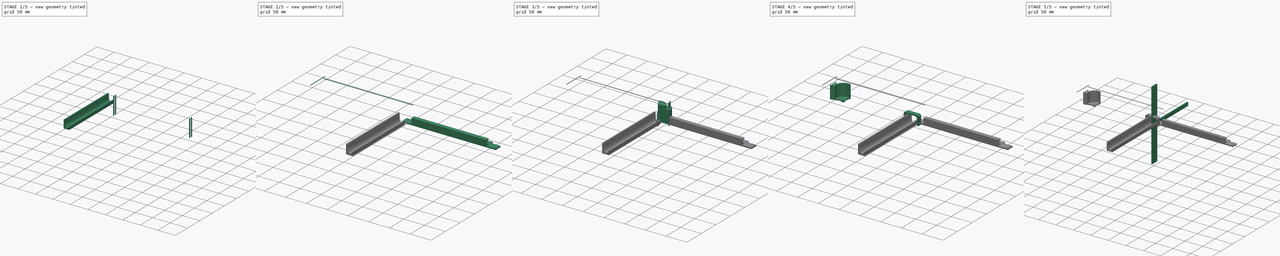
[diagram: build sequence overview — one tinted view per stage of 5, left to right]
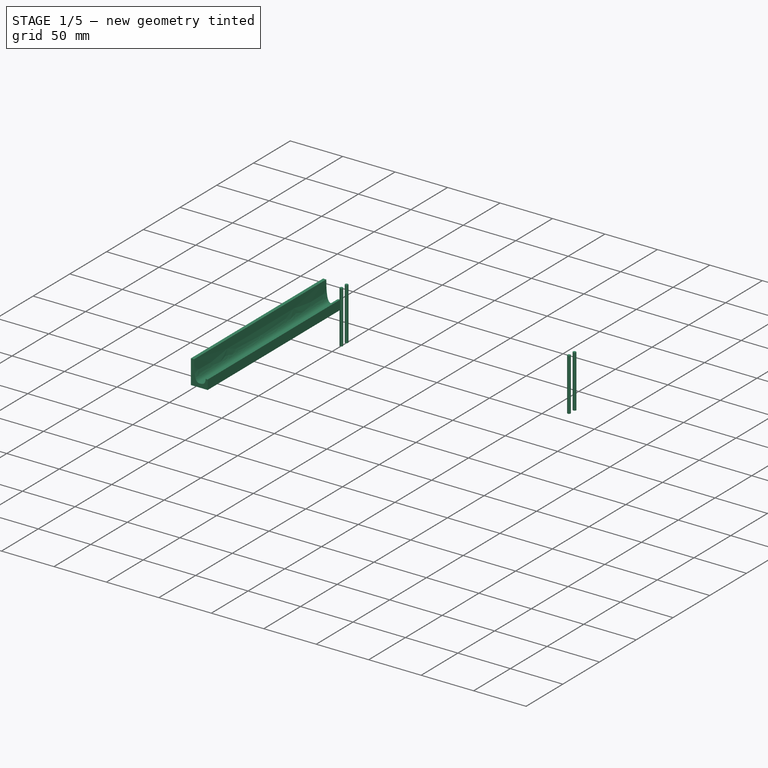
[diagram: stage 1 of 5 — iso view after this stage's code; geometry added in this stage tinted green]
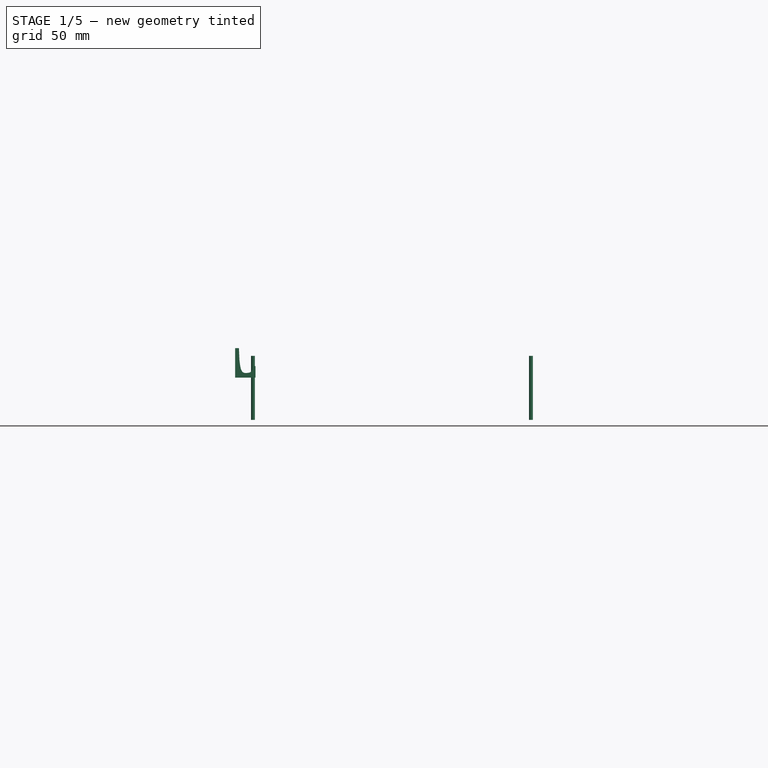
[diagram: stage 1 of 5 — front view after this stage's code; geometry added in this stage tinted green]
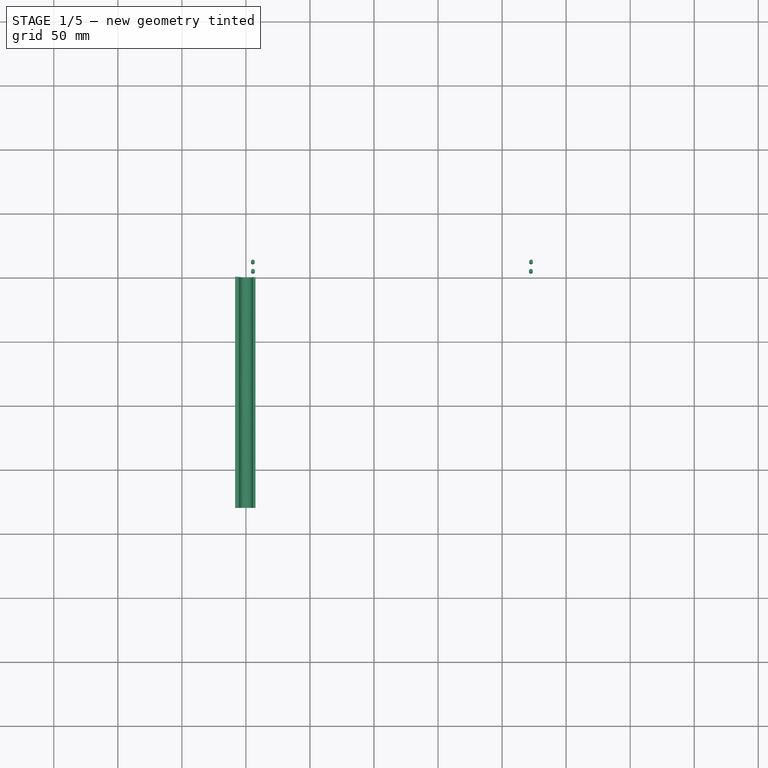
[diagram: stage 1 of 5 — top view after this stage's code; geometry added in this stage tinted green]
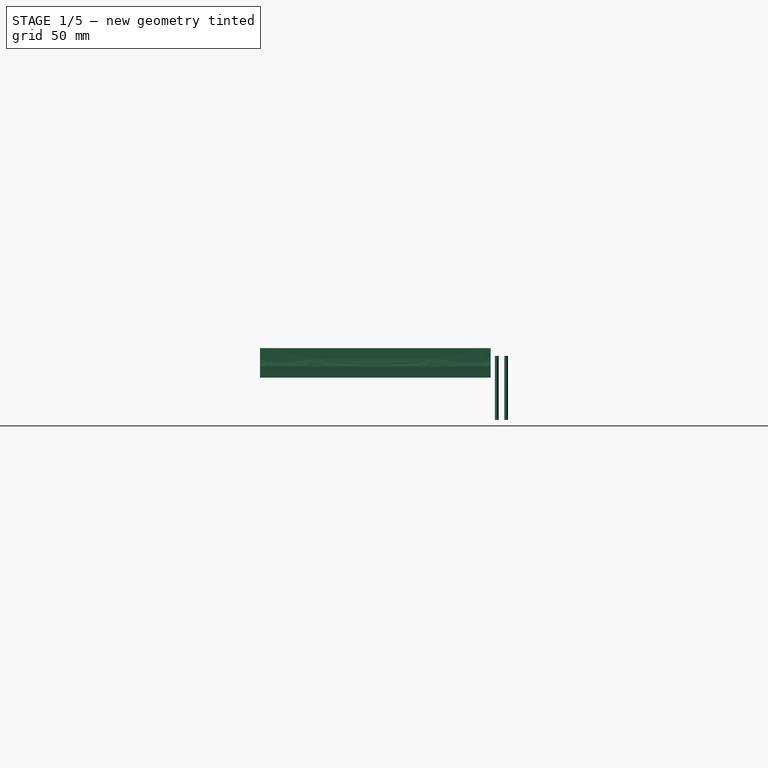
[diagram: stage 1 of 5 — right view after this stage's code; geometry added in this stage tinted green]
FCSTD DOCUMENT  (FreeCAD 0.18.4R)
Label: phone_holder
License: All rights reserved
LicenseURL: http://en.wikipedia.org/wiki/All_rights_reserved
objects: PartDesign::Body×11, App::Part×9, Part::Cylinder×8, Sketcher::SketchObject×6, PartDesign::Pad×6, PartDesign::FeatureBase×5, Part::MultiFuse×5, Part::Cut×4, Part::Box×3, Part::Mirroring×2, Part::Ellipse×1, Part::Extrusion×1, Part::Fillet×1
note: 59 computed .brp shape members not serialized (recipe doc carries the construction recipe); baked Part::Feature solids carry a one-line shape summary decoded from their .brp

FEATURE [Part::Cylinder] Cylinder006  label="Cylinder004"
  Angle = 360
  AttacherType = Attacher::AttachEngine3D
  Height = 50
  Placement = pos=(23,5,-5) rot=(0,0,1;0rad)
  Radius = 1.45
FEATURE [Part::Cylinder] Cylinder007  label="Cylinder005"
  Angle = 360
  AttacherType = Attacher::AttachEngine3D
  Height = 50
  Placement = pos=(21,12,-5) rot=(0,0,1;0rad)
  Radius = 1.45
FEATURE [Part::MultiFuse] Fusion
  Shapes = -> [Cylinder007,Cylinder006]
FEATURE [App::Part] Part005  label="bottom round part"
  Group = -> [Cylinder002,Cylinder003,Cylinder004,Cut002,Ellipse,Extrude,Fillet,Cylinder005,Fusion001,Fusion002,Part__Mirroring]
  Origin = -> Origin011
FEATURE [PartDesign::FeatureBase] Clone003
  BaseFeature = -> Fusion
FEATURE [PartDesign::Body] Body007  label="round holes clone"
  BaseFeature = -> Fusion
  Group = -> [Clone003]
  Origin = -> Origin015
  Placement = pos=(0,5.95964,-31) rot=(0,0,-1;0.261799rad)
  Tip = -> Clone003
FEATURE [Part::Mirroring] Part__Mirroring001  label="round holes clone (Mirror #2)"
  Base = (132,0,0)
  Normal = (1,0,0)
  Source = -> Body007
FEATURE [Part::MultiFuse] Fusion003
  Placement = pos=(-18,0,0) rot=(0,0,1;0rad)
  Shapes = -> [Part__Mirroring001,Body007]
FEATURE [PartDesign::Body] Body009
  Group = -> [Clone004]
  Origin = -> Origin017
  Tip = -> Clone004
FEATURE [Sketcher::SketchObject] Sketch005
  MapMode = 5
  Placement = pos=(0,0,0) rot=(1,0,0;1.5708rad)
  Support = -> [XZ_Plane017]
  sketch-geometry (11):
    g0: LineSegment StartX=-8.5 StartY=-3 StartZ=0 EndX=-8.5 EndY=20 EndZ=0
    g1: LineSegment StartX=-8.5 StartY=20 StartZ=0 EndX=-5.5 EndY=20 EndZ=0
    g2-g6: Circle [constr] x5 (B-spline internal-alignment scaffolding for g7; pole/knot coordinates omitted)
    g7: BSplineCurve PolesCount=5 KnotsCount=3 Degree=3 IsPeriodic=0
    g8: LineSegment StartX=7.5 StartY=-3 StartZ=0 EndX=7.5 EndY=6 EndZ=0
    g9: LineSegment StartX=5.5 StartY=6 StartZ=0 EndX=7.5 EndY=6 EndZ=0
    g10: LineSegment StartX=-8.5 StartY=-3 StartZ=0 EndX=7.5 EndY=-3 EndZ=0
  constraints (25):
    c: Vertical(g0)
    c: Coincident(g1,g0)
    c: Coincident(g7,g1)
    c: Radius(g2) = 1
    c: Equal(g2, g3-g6) x4
    c: InternalAlignment(g2-g6 -> g7) x5
    c: Coincident(g9,g7)
    c: Coincident(g9,g8)
    c: Horizontal(g9)
    c: Horizontal(g1)
    c: Coincident(g4,g-1)
    c: Symmetric(g5,g3,g-2)
    c: DistanceX(g1,g7) = 11
    c: DistanceX(g1,g1) = 3
    c: DistanceX(g9,g9) = 2
    c: Vertical(g8)
    c: DistanceX(g-1,g5) = 5.5
    c: DistanceY(g-1,g5) = 1.17
    c: DistanceY(g8,g-1) = 3
    c: DistanceY(g-1,g7) = 6
    c: Coincident(g10,g8)
    c: Horizontal(g10)
    c: DistanceY(g-1,g0) = 20
    c: DistanceX(g-1,g8) = 7.5
    c: Coincident(g10,g0)
FEATURE [PartDesign::Pad] Pad005
  Length = 180
  Length2 = 100
  Placement = pos=(0,0,0) rot=(1,0,0;1.5708rad)
  Profile = -> Sketch005
  Type = 0
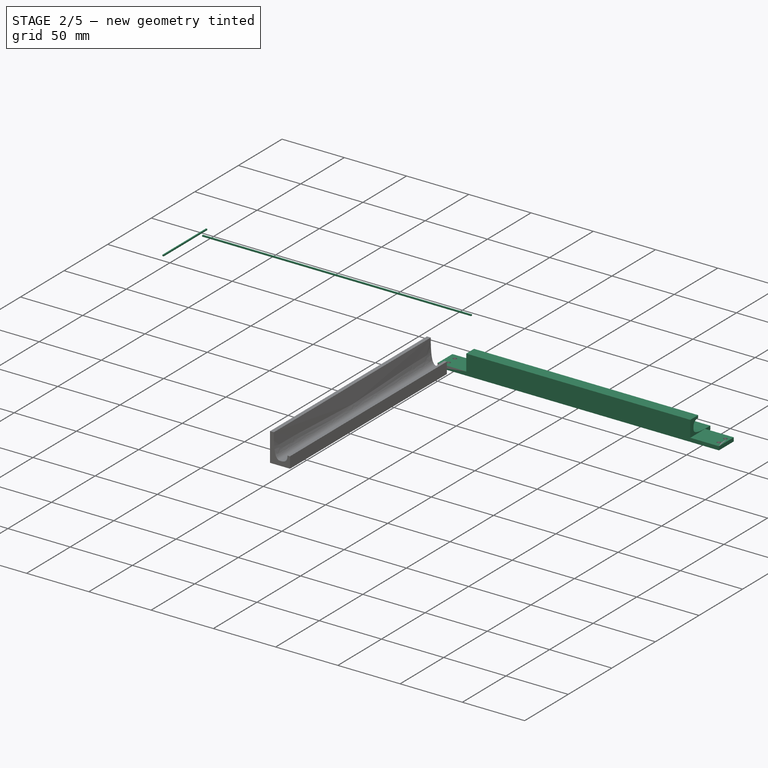
[diagram: stage 2 of 5 — iso view after this stage's code; geometry added in this stage tinted green]
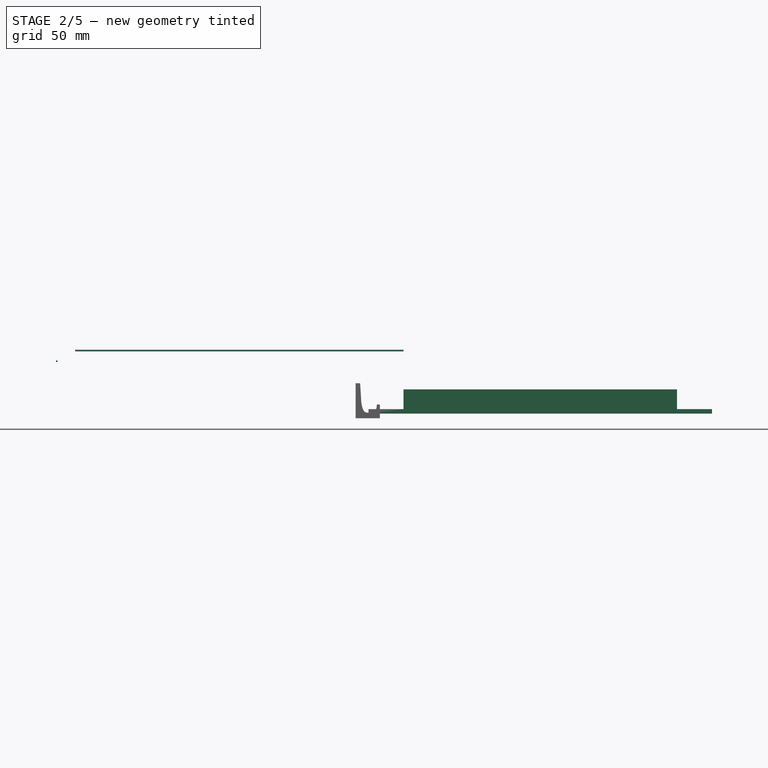
[diagram: stage 2 of 5 — front view after this stage's code; geometry added in this stage tinted green]
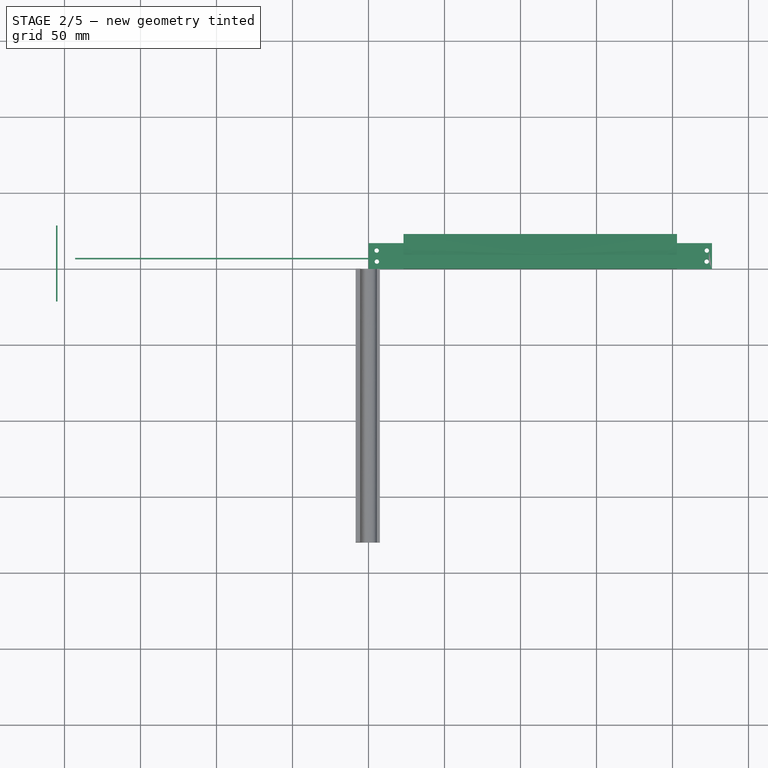
[diagram: stage 2 of 5 — top view after this stage's code; geometry added in this stage tinted green]
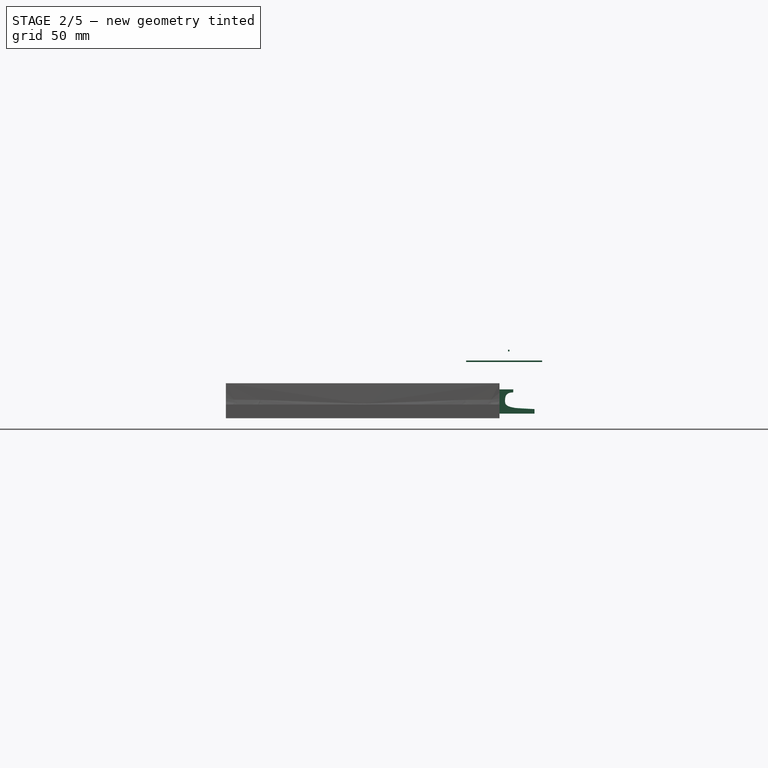
[diagram: stage 2 of 5 — right view after this stage's code; geometry added in this stage tinted green]
FEATURE [Part::Box] Box  label="Cube"
  AttacherType = Attacher::AttachEngine3D
  Height = 3
  Length = 226
  Width = 17
FEATURE [Part::Cut] Cut003
  Base = -> Box
  Tool = -> Fusion003
FEATURE [Part::Box] Box001  label="21.6 dist"
  AttacherType = Attacher::AttachEngine3D
  Height = 1
  Length = 216
  Placement = pos=(-193,5.6,41) rot=(0,0,1;0rad)
  Width = 1
FEATURE [Part::Box] Box002  label="vert line"
  AttacherType = Attacher::AttachEngine3D
  Height = 1
  Length = 1
  Placement = pos=(-205.6,-22,34) rot=(0,0,1;0rad)
  Width = 50
FEATURE [Sketcher::SketchObject] Sketch004
  MapMode = 5
  Placement = pos=(0,0,0) rot=(1,0,0;1.5708rad)
  Support = -> [XZ_Plane001]
  sketch-geometry (11):
    g0: LineSegment StartX=-8.5 StartY=-3 StartZ=0 EndX=-8.5 EndY=20 EndZ=0
    g1: LineSegment StartX=-8.5 StartY=20 StartZ=0 EndX=-5.5 EndY=20 EndZ=0
    g2-g6: Circle [constr] x5 (B-spline internal-alignment scaffolding for g7; pole/knot coordinates omitted)
    g7: BSplineCurve PolesCount=5 KnotsCount=3 Degree=3 IsPeriodic=0
    g8: LineSegment StartX=7.5 StartY=-3 StartZ=0 EndX=7.5 EndY=6 EndZ=0
    g9: LineSegment StartX=5.5 StartY=6 StartZ=0 EndX=7.5 EndY=6 EndZ=0
    g10: LineSegment StartX=-8.5 StartY=-3 StartZ=0 EndX=7.5 EndY=-3 EndZ=0
  constraints (25):
    c: Vertical(g0)
    c: Coincident(g1,g0)
    c: Coincident(g7,g1)
    c: Radius(g2) = 1
    c: Equal(g2, g3-g6) x4
    c: InternalAlignment(g2-g6 -> g7) x5
    c: Coincident(g9,g7)
    c: Coincident(g9,g8)
    c: Horizontal(g9)
    c: Horizontal(g1)
    c: Coincident(g4,g-1)
    c: Symmetric(g5,g3,g-2)
    c: DistanceX(g1,g7) = 11
    c: DistanceX(g1,g1) = 3
    c: DistanceX(g9,g9) = 2
    c: Vertical(g8)
    c: DistanceX(g-1,g5) = 5.5
    c: DistanceY(g-1,g5) = 1.17
    c: DistanceY(g8,g-1) = 3
    c: DistanceY(g-1,g7) = 6
    c: Coincident(g10,g8)
    c: Horizontal(g10)
    c: DistanceY(g-1,g0) = 20
    c: DistanceX(g-1,g8) = 7.5
    c: Coincident(g10,g0)
FEATURE [PartDesign::Pad] Pad004
  Length = 180
  Length2 = 100
  Placement = pos=(0,0,0) rot=(1,0,0;1.5708rad)
  Profile = -> Sketch004
  Type = 0
FEATURE [PartDesign::Body] Body008  label="holder body"
  Group = -> [Sketch004,Pad004]
  Origin = -> Origin016
  Placement = pos=(203,3,8.5) rot=(0.57735,0.57735,0.57735;4.18879rad)
  Tip = -> Pad004
FEATURE [App::Part] Part006  label="bottom connector line part"
  Group = -> [Box,Body007,Part__Mirroring001,Cut003,Fusion003,Body008]
  Origin = -> Origin012
  Placement = pos=(-198.7,-6,34.3) rot=(0,0,1;0rad)
FEATURE [PartDesign::FeatureBase] Clone004
  BaseFeature = -> Cut003
FEATURE [PartDesign::Body] Body011  label="holder body001"
  Group = -> [Sketch005,Pad005]
  Origin = -> Origin020
  Placement = pos=(203,3,8.5) rot=(0.57735,0.57735,0.57735;4.18879rad)
  Tip = -> Pad005
FEATURE [Part::MultiFuse] Fusion004
  Shapes = -> [Body011,Body009]
FEATURE [App::Part] Part008  label="bottom connector line print part"
  Group = -> [Body011,Body009,Fusion004]
  Origin = -> Origin018
  Placement = pos=(-198.7,-6,34.3) rot=(0,0,1;0rad)
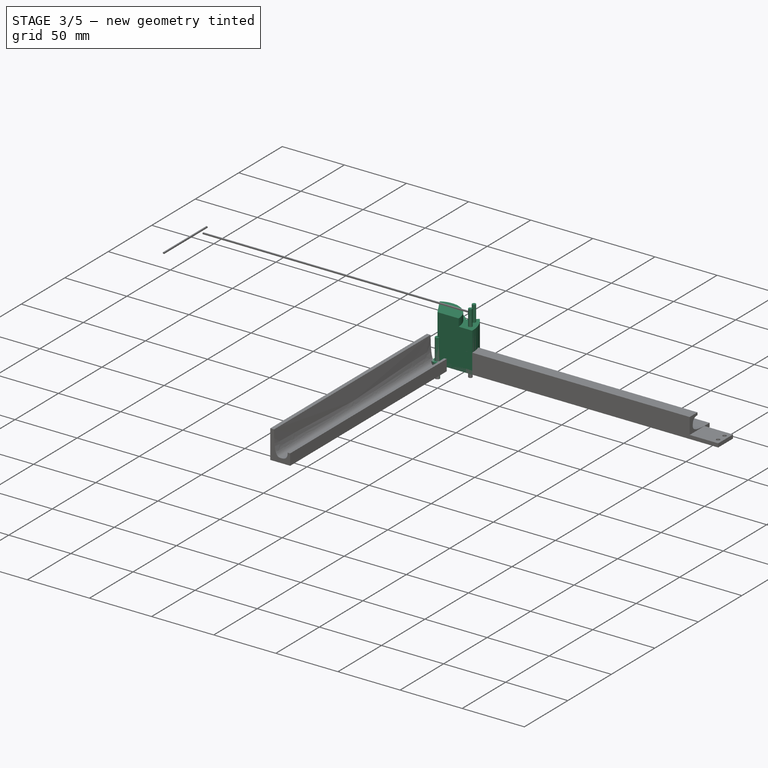
[diagram: stage 3 of 5 — iso view after this stage's code; geometry added in this stage tinted green]
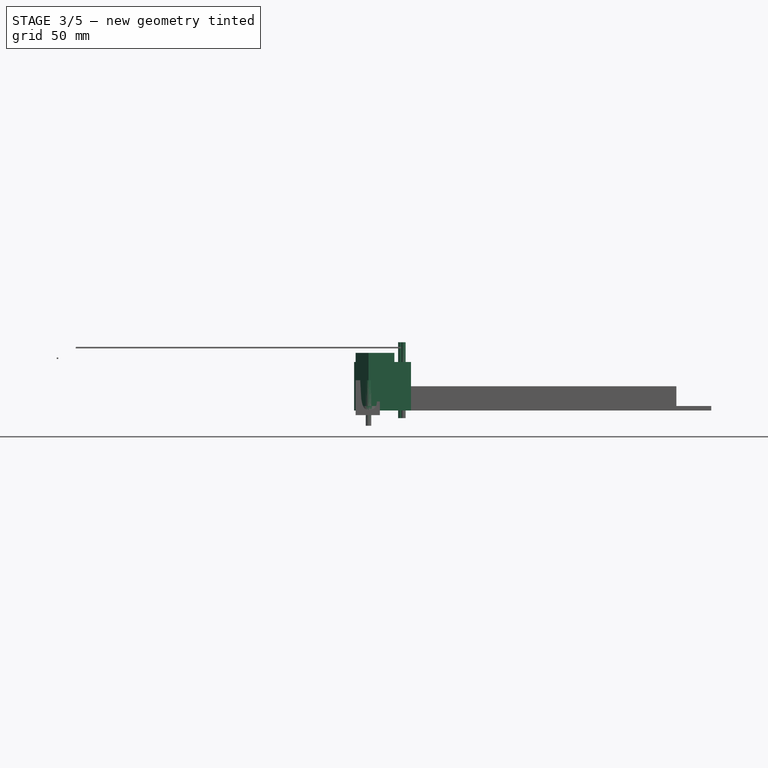
[diagram: stage 3 of 5 — front view after this stage's code; geometry added in this stage tinted green]
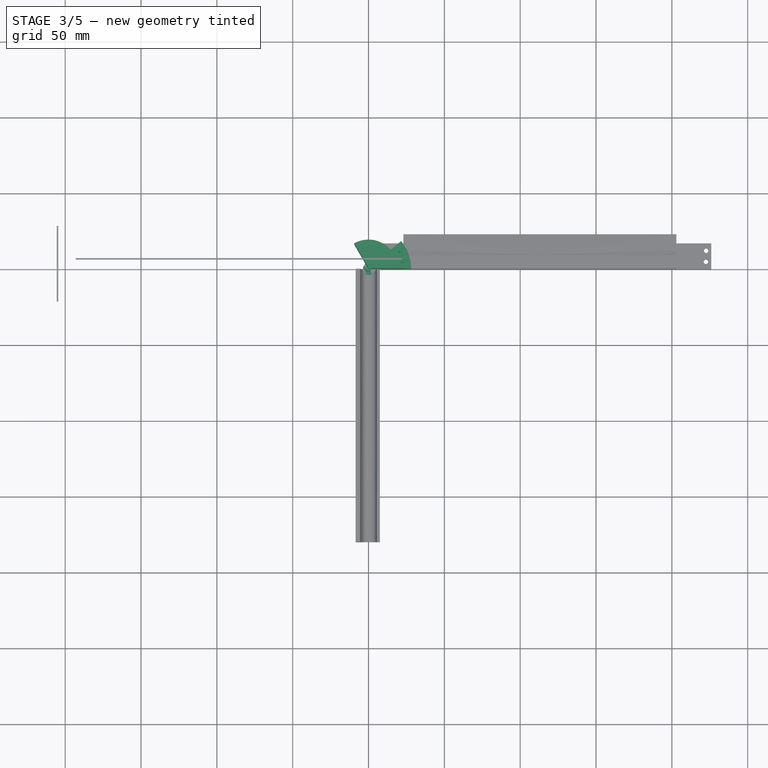
[diagram: stage 3 of 5 — top view after this stage's code; geometry added in this stage tinted green]
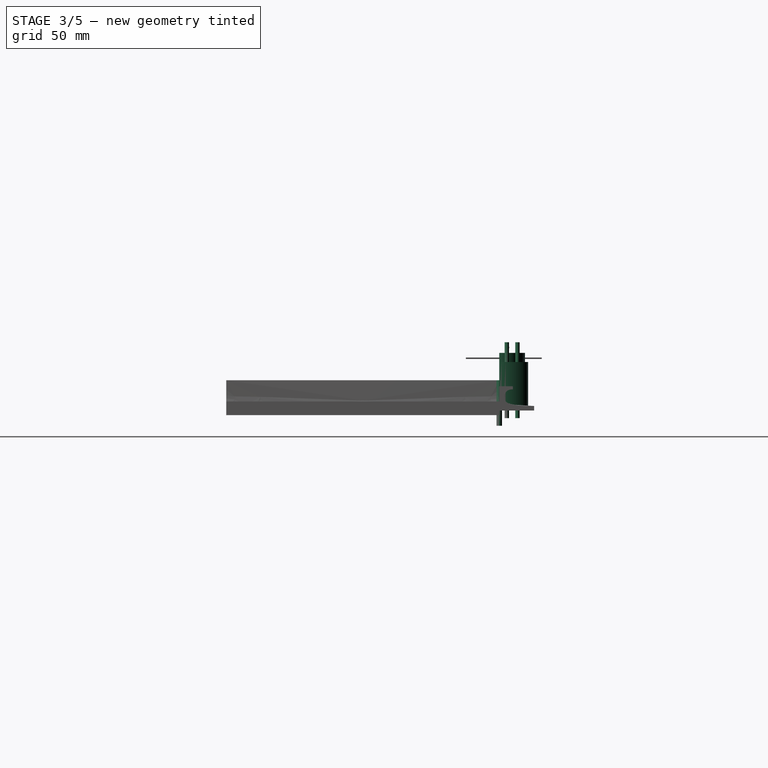
[diagram: stage 3 of 5 — right view after this stage's code; geometry added in this stage tinted green]
FEATURE [App::Part] Part001  label="top part"
  Group = -> [Body001,Cylinder001,Cut001]
  Origin = -> Origin002
  Placement = pos=(-15,71,80) rot=(0,0,1;0rad)
FEATURE [Part::Cylinder] Cylinder002  label="Cylinder"
  Angle = 360
  AttacherType = Attacher::AttachEngine3D
  Height = 30
  Placement = pos=(0,0,-10) rot=(0,0,1;0rad)
  Radius = 1.8
FEATURE [Part::Cylinder] Cylinder003  label="Cylinder001"
  Angle = 120
  AttacherType = Attacher::AttachEngine3D
  Height = 32
  Radius = 19
FEATURE [Part::Cylinder] Cylinder004  label="Cylinder002"
  Angle = 120
  AttacherType = Attacher::AttachEngine3D
  Height = 35
  Placement = pos=(0,0,3) rot=(0,0,1;0rad)
  Radius = 17
FEATURE [Part::Ellipse] Ellipse
  Angle0 = 0
  Angle1 = 360
  AttacherType = Attacher::AttachEngine3D
  MajorRadius = 5
  MinorRadius = 4
FEATURE [Part::Extrusion] Extrude
  Base = -> Ellipse
  Dir = (0,0,1)
  DirMode = 2
  FaceMakerClass = Part::FaceMakerBullseye
  LengthFwd = 3
  LengthRev = 0
  Placement = pos=(0.707107,0.707107,0) rot=(0,0,1;0.785398rad)
  Solid = true
  Symmetric = false
FEATURE [Part::Cylinder] Cylinder005  label="Cylinder003"
  Angle = 40
  AttacherType = Attacher::AttachEngine3D
  Height = 32
  Radius = 28
FEATURE [App::Part] Part007  label="bottom round holes"
  Group = -> [Cylinder006,Cylinder007,Fusion]
  Origin = -> Origin013
FEATURE [PartDesign::FeatureBase] Clone002
  BaseFeature = -> Fusion
FEATURE [PartDesign::Body] Body006
  BaseFeature = -> Fusion
  Group = -> [Clone002]
  Origin = -> Origin014
  Tip = -> Clone002
FEATURE [Part::MultiFuse] Fusion002
  Shapes = -> [Cylinder002,Cylinder004,Body006]
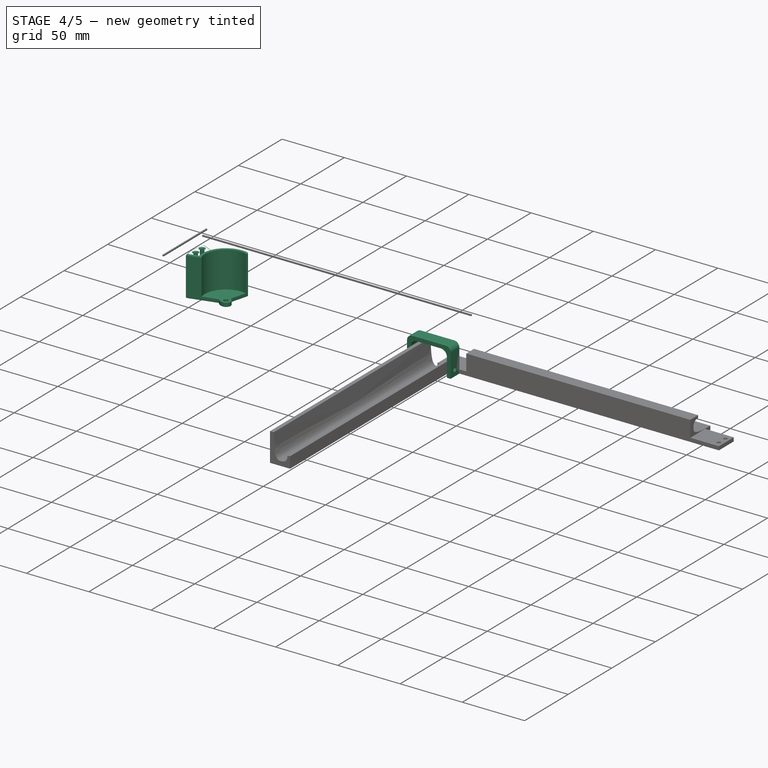
[diagram: stage 4 of 5 — iso view after this stage's code; geometry added in this stage tinted green]
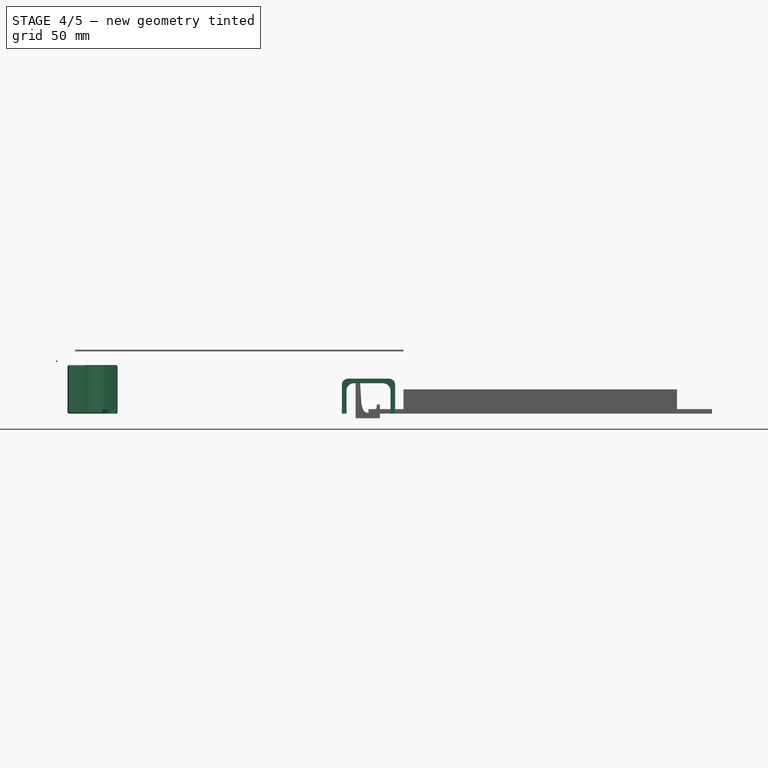
[diagram: stage 4 of 5 — front view after this stage's code; geometry added in this stage tinted green]
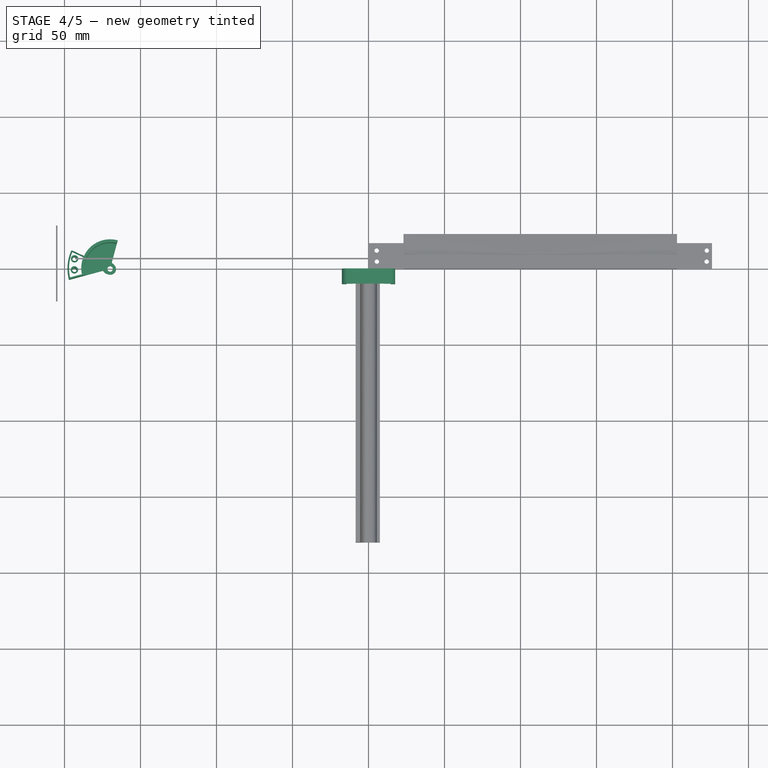
[diagram: stage 4 of 5 — top view after this stage's code; geometry added in this stage tinted green]
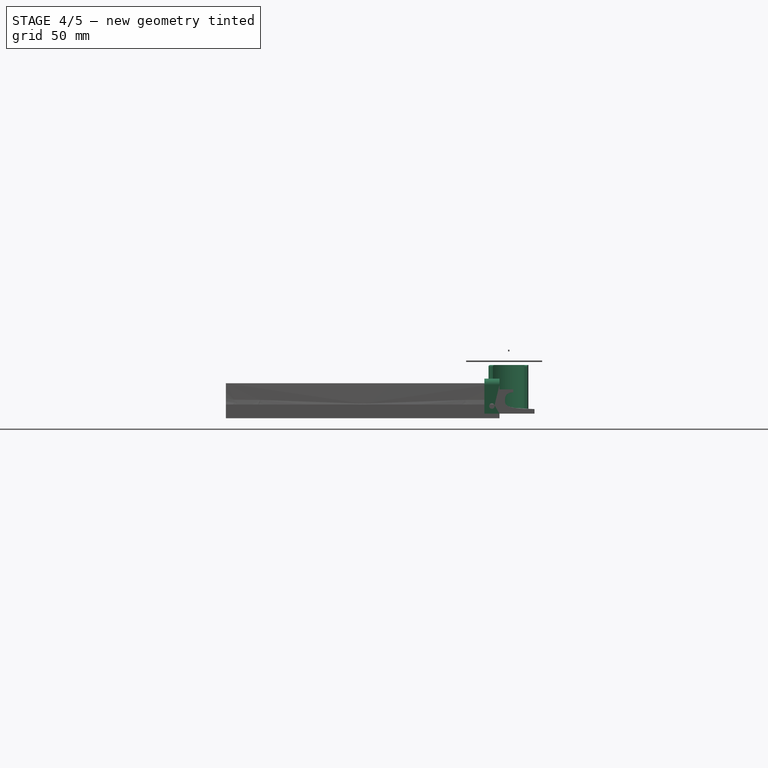
[diagram: stage 4 of 5 — right view after this stage's code; geometry added in this stage tinted green]
FEATURE [PartDesign::Body] Body
  Group = -> [Sketch,Pad]
  Origin = -> Origin001
  Tip = -> Pad
FEATURE [Sketcher::SketchObject] Sketch001
  MapMode = 5
  Placement = pos=(0,0,0) rot=(1,0,0;1.5708rad)
  Support = -> [XZ_Plane003]
  sketch-geometry (12):
    g0: LineSegment StartX=-14.5 StartY=0 StartZ=0 EndX=-14.5 EndY=15 EndZ=0
    g1: LineSegment StartX=-9.5 StartY=20 StartZ=0 EndX=9.5 EndY=20 EndZ=0
    g2: LineSegment StartX=-14.5 StartY=0 StartZ=0 EndX=-17.5 EndY=0 EndZ=0
    g3: LineSegment StartX=-17.5 StartY=0 StartZ=0 EndX=-17.5 EndY=19 EndZ=0
    g4: LineSegment StartX=-13.5 StartY=23 StartZ=0 EndX=13.5 EndY=23 EndZ=0
    g5: LineSegment StartX=17.5 StartY=19 StartZ=0 EndX=17.5 EndY=0 EndZ=0
    g6: LineSegment StartX=17.5 StartY=0 StartZ=0 EndX=14.5 EndY=0 EndZ=0
    g7: ArcOfCircle CenterX=-13.5 CenterY=19 CenterZ=0 NormalX=0 NormalY=0 NormalZ=1 AngleXU=0 Radius=4 StartAngle=1.5708 EndAngle=3.14159
    g8: ArcOfCircle CenterX=13.5 CenterY=19 CenterZ=0 NormalX=0 NormalY=0 NormalZ=1 AngleXU=0 Radius=4 StartAngle=0 EndAngle=1.5708
    g9: ArcOfCircle CenterX=9.5 CenterY=15 CenterZ=0 NormalX=0 NormalY=0 NormalZ=1 AngleXU=0 Radius=5 StartAngle=0 EndAngle=1.5708
    g10: ArcOfCircle CenterX=-9.5 CenterY=15 CenterZ=0 NormalX=0 NormalY=0 NormalZ=1 AngleXU=0 Radius=5 StartAngle=1.5708 EndAngle=3.14159
    g11: LineSegment StartX=14.5 StartY=15 StartZ=0 EndX=14.5 EndY=0 EndZ=0
  constraints (31):
    c: Vertical(g0)
    c: Horizontal(g1)
    c: Coincident(g0,g2)
    c: Horizontal(g2)
    c: Coincident(g2,g3)
    c: Vertical(g3)
    c: Vertical(g5)
    c: Coincident(g5,g6)
    c: DistanceX(g2,g2) = 3
    c: Horizontal(g6)
    c: DistanceX(g6,g6) = 3
    c: Tangent(g3,g7) = 1.5708
    c: Tangent(g4,g7) = 1.5708
    c: Tangent(g4,g8) = 1.5708
    c: Tangent(g5,g8) = 1.5708
    c: Tangent(g1,g9) = 1.5708
    c: Tangent(g1,g10) = 1.5708
    c: Tangent(g0,g10) = 1.5708
    c: Symmetric(g5,g3,g-2)
    c: DistanceY(g1,g4) = 3
    c: DistanceY(g0,g1) = 20
    c: Vertical(g11)
    c: DistanceY(g6,g1) = 20
    c: Equal(g9,g10)
    c: DistanceX(g0,g6) = 29
    c: Equal(g7,g8)
    c: DistanceY(g-1,g0) = 0
    c: Tangent(g11,g9) = 1.5708
    c: Coincident(g11,g6)
    c: Radius(g7) = 4
    c: Radius(g10) = 5
FEATURE [PartDesign::Pad] Pad001
  Length = 10
  Length2 = 100
  Placement = pos=(0,0,0) rot=(1,0,0;1.5708rad)
  Profile = -> Sketch001
  Type = 0
FEATURE [App::Part] Part  label="bottom part"
  Group = -> [Body,Cylinder,Cut]
  Origin = -> Origin
  Placement = pos=(-35.4,-2.8,41.9) rot=(-0.57735,-0.57735,-0.57735;2.0944rad)
FEATURE [Part::Cylinder] Cylinder001  label="hole001"
  Angle = 360
  AttacherType = Attacher::AttachEngine3D
  Height = 40
  Placement = pos=(-4,-5,5) rot=(0,1,0;1.5708rad)
  Radius = 1.8
FEATURE [Part::Cut] Cut001
  Base = -> Body001
  Tool = -> Cylinder001
FEATURE [Part::MultiFuse] Fusion001
  Shapes = -> [Cylinder003,Cylinder005,Extrude]
FEATURE [Part::Cut] Cut002
  Base = -> Fusion001
  Tool = -> Fusion002
FEATURE [Part::Fillet] Fillet
  Base = -> Cut002
  Edges = 12 edges r=1: [Edge2,Edge4,Edge9,Edge11,Edge12,Edge13,Edge14,Edge15,Edge21,Edge30,Edge32,Edge33]
  Placement = pos=(0,0,0) rot=(0,0,-1;0.261799rad)
FEATURE [Part::Mirroring] Part__Mirroring  label="Fillet (Mirror #1)"
  Base = (-85,0,0)
  Normal = (1,0,0)
  Source = -> Fillet
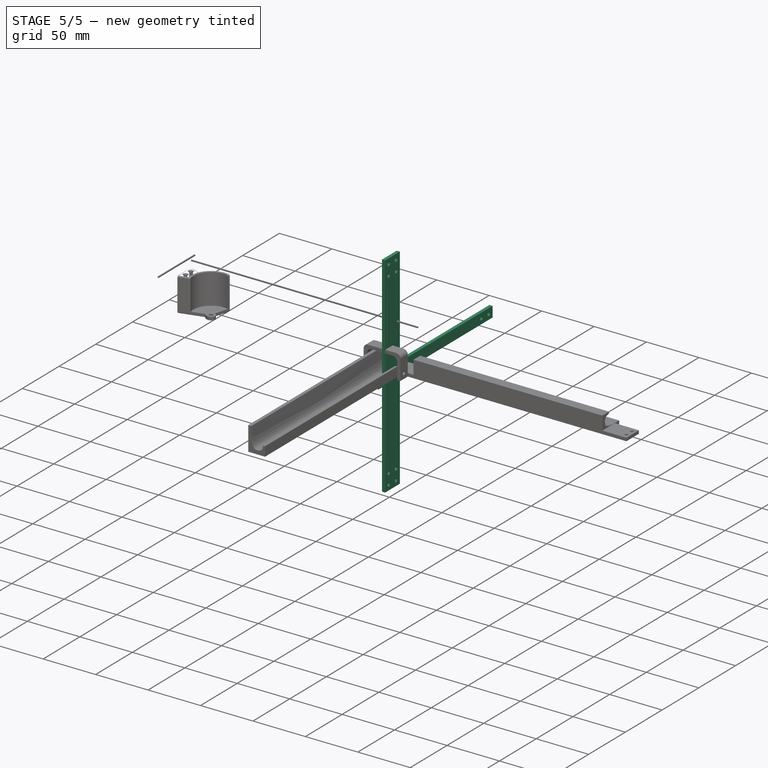
[diagram: stage 5 of 5 — iso view after this stage's code; geometry added in this stage tinted green]
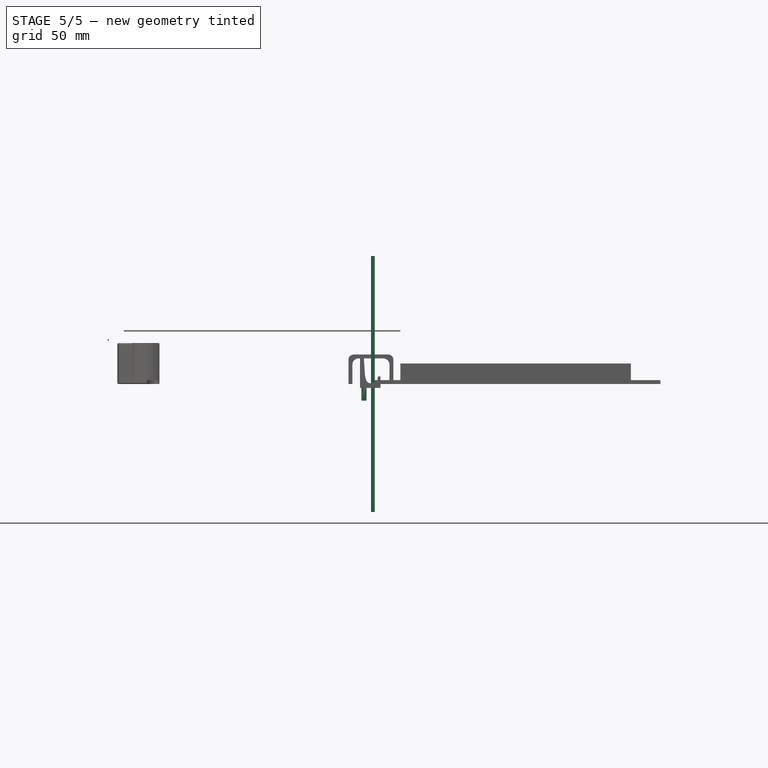
[diagram: stage 5 of 5 — front view after this stage's code; geometry added in this stage tinted green]
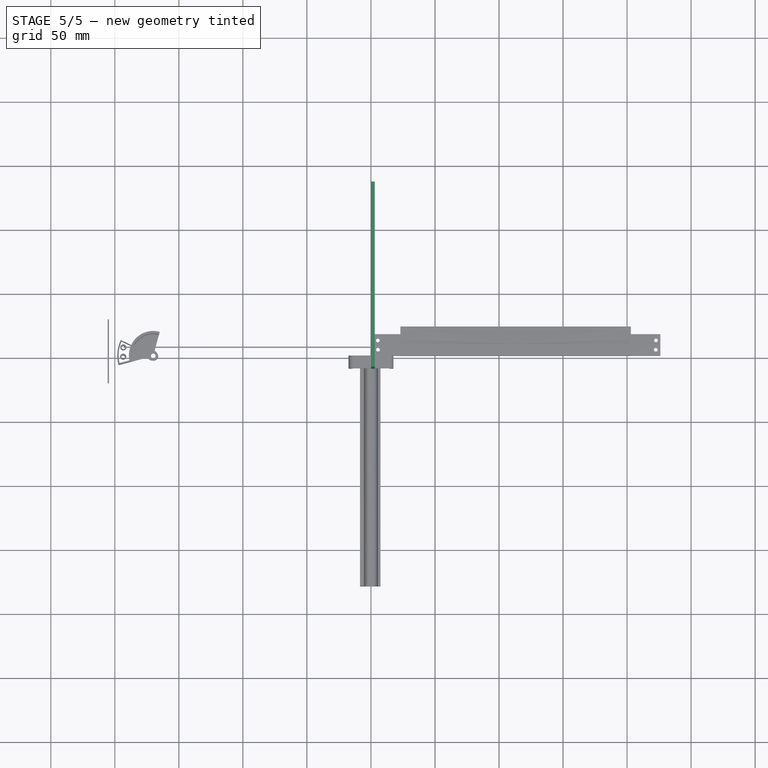
[diagram: stage 5 of 5 — top view after this stage's code; geometry added in this stage tinted green]
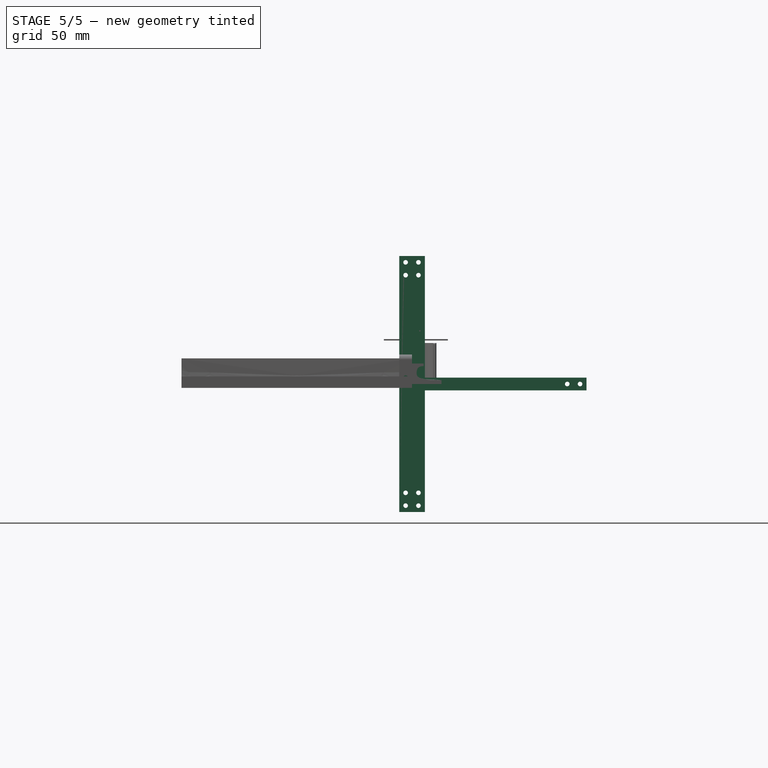
[diagram: stage 5 of 5 — right view after this stage's code; geometry added in this stage tinted green]
FEATURE [Sketcher::SketchObject] Sketch
  MapMode = 5
  Placement = pos=(0,0,0) rot=(1,0,0;1.5708rad)
  Support = -> [XZ_Plane001]
  sketch-geometry (13):
    g0: LineSegment StartX=-7.5 StartY=-13 StartZ=0 EndX=-7.5 EndY=20 EndZ=0
    g1: LineSegment StartX=-7.5 StartY=20 StartZ=0 EndX=-5.5 EndY=20 EndZ=0
    g2-g6: Circle [constr] x5 (B-spline internal-alignment scaffolding for g7; pole/knot coordinates omitted)
    g7: BSplineCurve PolesCount=5 KnotsCount=3 Degree=3 IsPeriodic=0
    g8: LineSegment StartX=7.5 StartY=-3 StartZ=0 EndX=7.5 EndY=6 EndZ=0
    g9: LineSegment StartX=5.5 StartY=6 StartZ=0 EndX=7.5 EndY=6 EndZ=0
    g10: LineSegment StartX=-7.5 StartY=-13 StartZ=0 EndX=-3.5 EndY=-13 EndZ=0
    g11: LineSegment StartX=-3.5 StartY=-13 StartZ=0 EndX=-3.5 EndY=-3 EndZ=0
    g12: LineSegment StartX=-3.5 StartY=-3 StartZ=0 EndX=7.5 EndY=-3 EndZ=0
  constraints (31):
    c: Vertical(g0)
    c: Coincident(g1,g0)
    c: Coincident(g7,g1)
    c: Radius(g2) = 1
    c: Equal(g2, g3-g6) x4
    c: InternalAlignment(g2-g6 -> g7) x5
    c: Coincident(g9,g7)
    c: Coincident(g9,g8)
    c: Horizontal(g9)
    c: Horizontal(g1)
    c: Coincident(g4,g-1)
    c: Symmetric(g5,g3,g-2)
    c: DistanceX(g1,g7) = 11
    c: DistanceX(g1,g1) = 2
    c: DistanceX(g9,g9) = 2
    c: Vertical(g8)
    c: DistanceX(g-1,g5) = 5.5
    c: DistanceY(g-1,g5) = 1.17
    c: DistanceY(g8,g-1) = 3
    c: DistanceY(g-1,g7) = 6
    c: DistanceY(g0,g8) = 10
    c: Coincident(g0,g10)
    c: Horizontal(g10)
    c: Coincident(g10,g11)
    c: Coincident(g11,g12)
    c: Coincident(g12,g8)
    c: Horizontal(g12)
    c: Vertical(g11)
    c: DistanceX(g10,g10) = 4
    c: DistanceY(g-1,g0) = 20
    c: DistanceX(g-1,g8) = 7.5
FEATURE [PartDesign::Pad] Pad
  Length = 10
  Length2 = 100
  Placement = pos=(0,0,0) rot=(1,0,0;1.5708rad)
  Profile = -> Sketch
  Type = 0
FEATURE [PartDesign::Body] Body001  label="top body"
  Group = -> [Sketch001,Pad001]
  Origin = -> Origin003
  Tip = -> Pad001
FEATURE [Sketcher::SketchObject] Sketch002
  MapMode = 5
  Placement = pos=(0,0,0) rot=(0.57735,0.57735,0.57735;2.0944rad)
  Support = -> [YZ_Plane005]
  sketch-geometry (12):
    g0: LineSegment StartX=-10 StartY=100 StartZ=0 EndX=10 EndY=100 EndZ=0
    g1: LineSegment StartX=10 StartY=100 StartZ=0 EndX=10 EndY=-100 EndZ=0
    g2: LineSegment StartX=10 StartY=-100 StartZ=0 EndX=-10 EndY=-100 EndZ=0
    g3: LineSegment StartX=-10 StartY=-100 StartZ=0 EndX=-10 EndY=100 EndZ=0
    g4: Circle CenterX=-5 CenterY=95 CenterZ=0 NormalX=0 NormalY=0 NormalZ=1 AngleXU=0 Radius=1.8
    g5: Circle CenterX=5 CenterY=95 CenterZ=0 NormalX=0 NormalY=0 NormalZ=1 AngleXU=0 Radius=1.8
    g6: Circle CenterX=-5 CenterY=85 CenterZ=0 NormalX=0 NormalY=0 NormalZ=1 AngleXU=0 Radius=1.8
    g7: Circle CenterX=5 CenterY=85 CenterZ=0 NormalX=0 NormalY=0 NormalZ=1 AngleXU=0 Radius=1.8
    g8: Circle CenterX=-5 CenterY=-95 CenterZ=0 NormalX=0 NormalY=0 NormalZ=1 AngleXU=0 Radius=1.8
    g9: Circle CenterX=5 CenterY=-95 CenterZ=0 NormalX=0 NormalY=0 NormalZ=1 AngleXU=0 Radius=1.8
    g10: Circle CenterX=5 CenterY=-85 CenterZ=0 NormalX=0 NormalY=0 NormalZ=1 AngleXU=0 Radius=1.8
    g11: Circle CenterX=-5 CenterY=-85 CenterZ=0 NormalX=0 NormalY=0 NormalZ=1 AngleXU=0 Radius=1.8
  constraints (30):
    c: Coincident(g0,g1)
    c: Coincident(g1,g2)
    c: Coincident(g2,g3)
    c: Coincident(g3,g0)
    c: Horizontal(g2)
    c: Vertical(g1)
    c: DistanceY(g1,g1) = 200
    c: DistanceX(g2,g2) = 20
    c: Symmetric(g0,g0,g-2)
    c: Radius(g6) = 1.8
    c: Equal(g7,g6)
    c: Equal(g6,g5)
    c: Equal(g5,g4)
    c: DistanceY(g6,g4) = 10
    c: DistanceY(g5,g0) = 5
    c: Equal(g6,g10) = 1.8
    c: Equal(g11,g10)
    c: Equal(g10,g9)
    c: Equal(g9,g8)
    c: DistanceX(g8,g9) = 10
    c: DistanceY(g1,g9) = 5
    c: DistanceY(g9,g11) = 10
    c: Symmetric(g9,g8,g-2)
    c: Symmetric(g4,g5,g-2)
    c: DistanceX(g0,g6) = 5
    c: Symmetric(g7,g6,g-2)
    c: DistanceX(g2,g11) = 5
    c: Symmetric(g10,g11,g-2)
    c: Symmetric(g0,g2,g-1)
    c: DistanceX(g0,g4) = 5
FEATURE [PartDesign::Pad] Pad002
  Length = 3
  Length2 = 100
  Placement = pos=(0,0,0) rot=(0.57735,0.57735,0.57735;2.0944rad)
  Profile = -> Sketch002
  Type = 0
FEATURE [PartDesign::Body] Body002  label="vertical line body"
  Group = -> [Sketch002,Pad002]
  Origin = -> Origin005
  Tip = -> Pad002
FEATURE [App::Part] Part002  label="vertical line part"
  Group = -> [Body002]
  Origin = -> Origin004
FEATURE [PartDesign::FeatureBase] Clone
  BaseFeature = -> Body002
FEATURE [PartDesign::Body] Body003  label="vertical line clone"
  BaseFeature = -> Body002
  Group = -> [Clone]
  Origin = -> Origin006
  Placement = pos=(0,123,0) rot=(0,0,1;0rad)
  Tip = -> Clone
FEATURE [Sketcher::SketchObject] Sketch003
  MapMode = 5
  Placement = pos=(0,0,0) rot=(0.57735,0.57735,0.57735;2.0944rad)
  Support = -> [YZ_Plane008]
  sketch-geometry (8):
    g0: LineSegment StartX=-6.8 StartY=5 StartZ=0 EndX=136.2 EndY=5 EndZ=0
    g1: LineSegment StartX=136.2 StartY=5 StartZ=0 EndX=136.2 EndY=-5 EndZ=0
    g2: LineSegment StartX=136.2 StartY=-5 StartZ=0 EndX=-6.8 EndY=-5 EndZ=0
    g3: LineSegment StartX=-6.8 StartY=-5 StartZ=0 EndX=-6.8 EndY=5 EndZ=0
    g4: Circle CenterX=-1.8 CenterY=0 CenterZ=0 NormalX=0 NormalY=0 NormalZ=1 AngleXU=0 Radius=1.8
    g5: Circle CenterX=8.2 CenterY=0 CenterZ=0 NormalX=0 NormalY=0 NormalZ=1 AngleXU=0 Radius=1.8
    g6: Circle CenterX=121.2 CenterY=0 CenterZ=0 NormalX=0 NormalY=0 NormalZ=1 AngleXU=0 Radius=1.8
    g7: Circle CenterX=131.2 CenterY=0 CenterZ=0 NormalX=0 NormalY=0 NormalZ=1 AngleXU=0 Radius=1.8
  constraints (23):
    c: Coincident(g0,g1)
    c: Coincident(g1,g2)
    c: Coincident(g2,g3)
    c: Coincident(g3,g0)
    c: Horizontal(g0)
    c: Horizontal(g2)
    c: Vertical(g1)
    c: DistanceX(g2,g2) = 143
    c: DistanceY(g3,g3) = 10
    c: Tangent(g4,g-2)
    c: Radius(g4) = 1.8
    c: Equal(g5,g4)
    c: Symmetric(g0,g2,g-1)
    c: DistanceX(g0,g4) = 5
    c: Equal(g4,g6) = 1.8
    c: Equal(g7,g6)
    c: DistanceX(g7,g1) = 5
    c: DistanceY(g-1,g4) = 0
    c: DistanceX(g4,g5) = 10
    c: DistanceY(g7,g6) = 0
    c: DistanceY(g6,g5) = 0
    c: DistanceX(g6,g7) = 10
    c: DistanceY(g5,g-1) = 0
FEATURE [PartDesign::Pad] Pad003
  Length = 3
  Length2 = 100
  Placement = pos=(0,0,0) rot=(0.57735,0.57735,0.57735;2.0944rad)
  Profile = -> Sketch003
  Type = 0
FEATURE [PartDesign::Body] Body004  label="horisontal line body"
  Group = -> [Sketch003,Pad003]
  Origin = -> Origin008
  Tip = -> Pad003
FEATURE [App::Part] Part003  label="horisontal line part"
  Group = -> [Body004]
  Origin = -> Origin007
  Placement = pos=(3,-3,85) rot=(0,0,1;0rad)
FEATURE [PartDesign::FeatureBase] Clone001
  BaseFeature = -> Body004
FEATURE [PartDesign::Body] Body005  label="horisontal line clone"
  BaseFeature = -> Body004
  Group = -> [Clone001]
  Origin = -> Origin009
  Tip = -> Clone001
FEATURE [App::Part] Part004  label="horisontal line clone part"
  Group = -> [Body005]
  Origin = -> Origin010
  Placement = pos=(3,-3,-85) rot=(0,0,1;0rad)
FEATURE [Part::Cylinder] Cylinder  label="hole"
  Angle = 360
  AttacherType = Attacher::AttachEngine3D
  Height = 40
  Placement = pos=(-25,-5,-8) rot=(0,1,0;1.5708rad)
  Radius = 1.8
FEATURE [Part::Cut] Cut
  Base = -> Body
  Tool = -> Cylinder
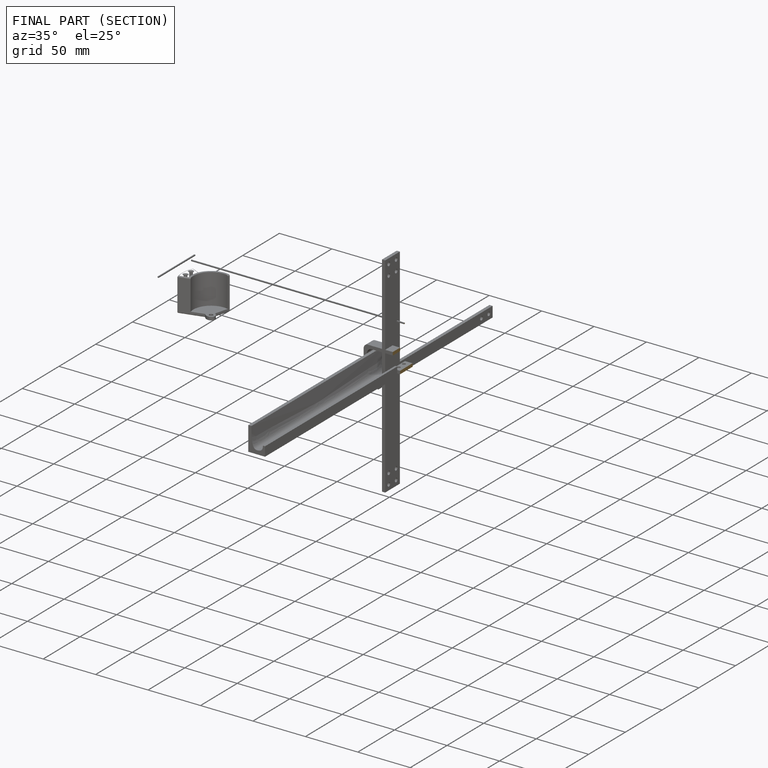
[diagram: finished part — half-section view (interior)]
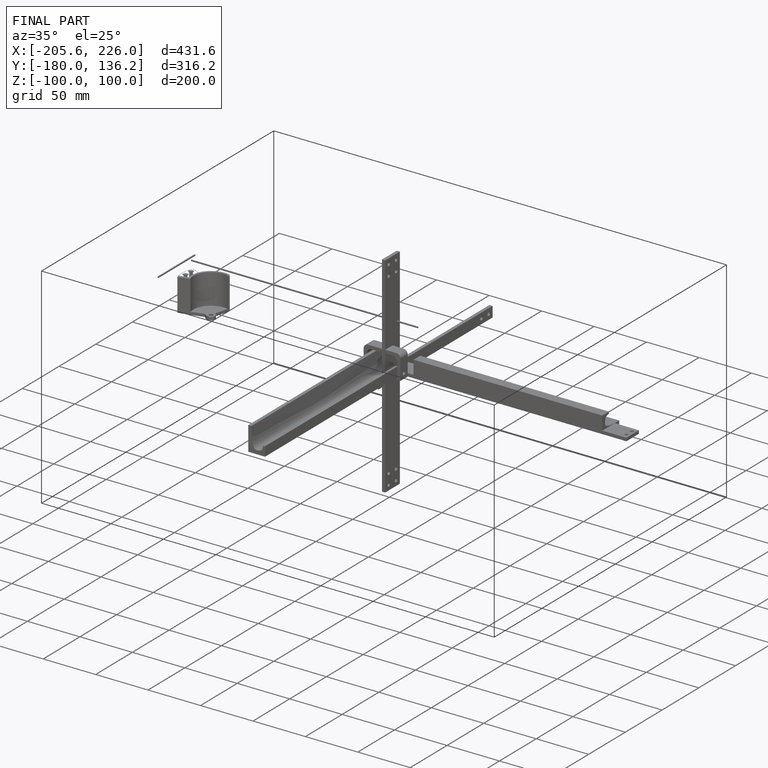
[diagram: finished part — iso view with bounding-box wireframe]
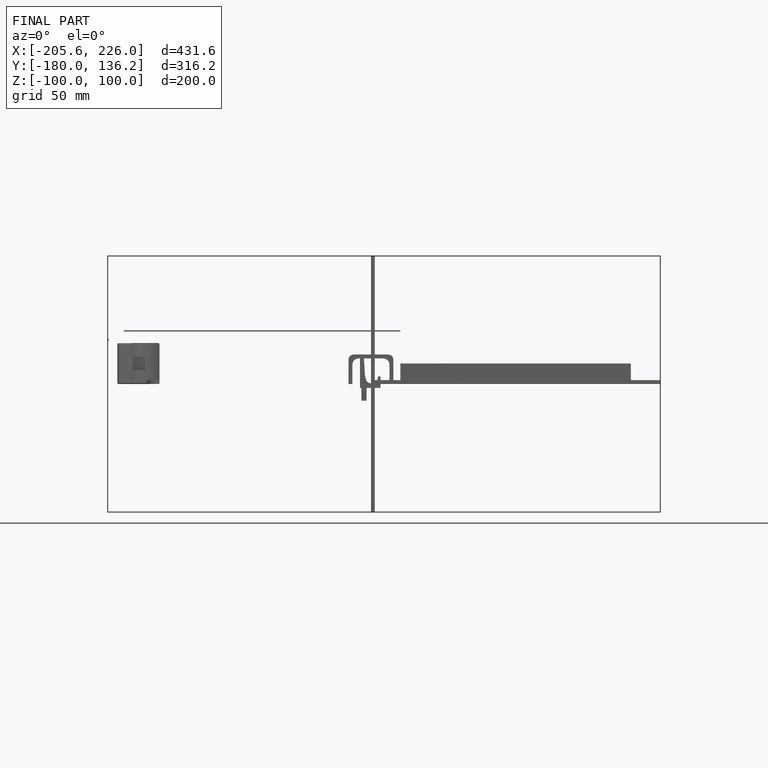
[diagram: finished part — front view with bounding-box wireframe]
